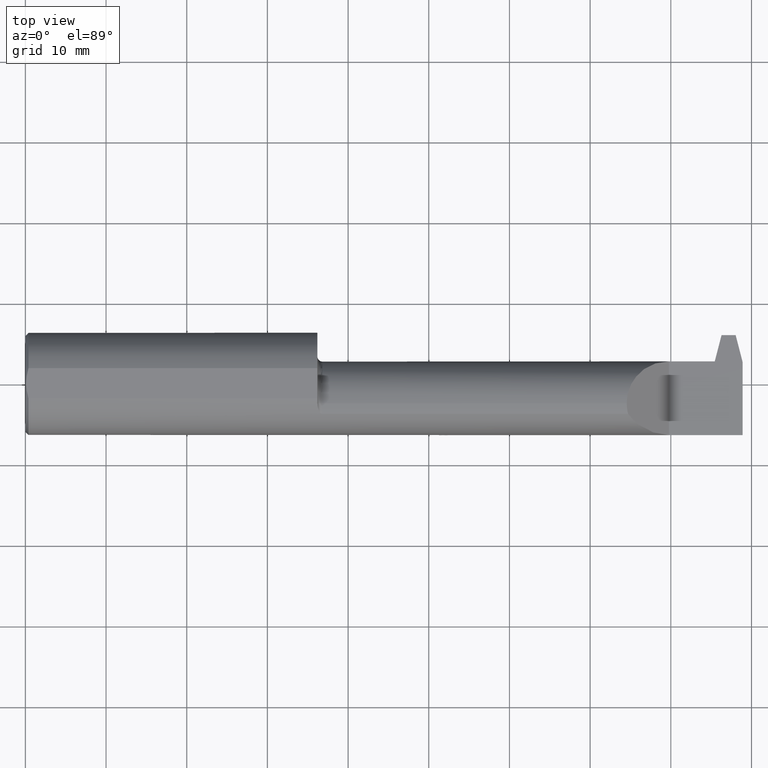
[diagram: clean part render]
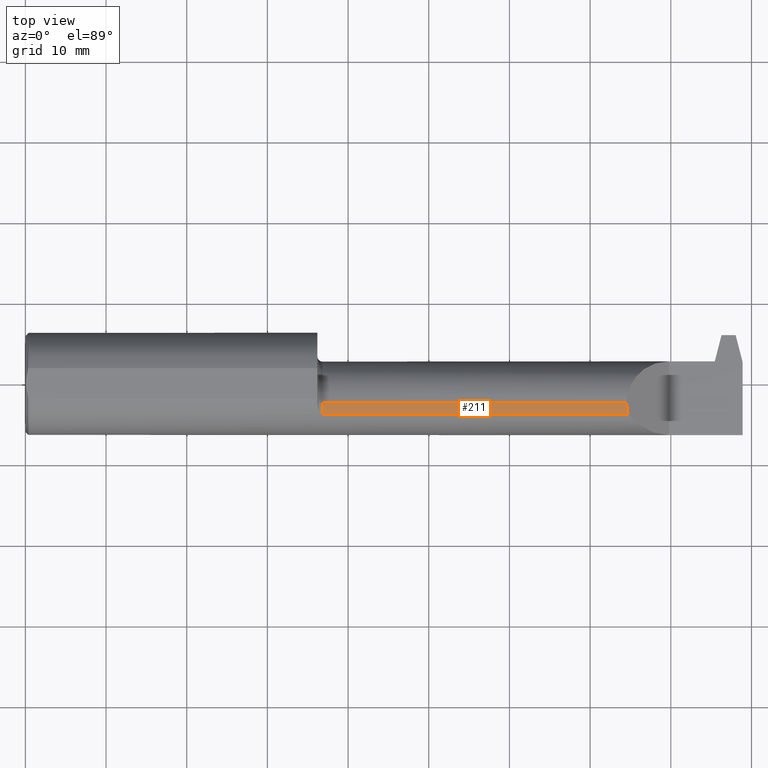
[diagram: same view with one face highlighted and labeled with its STEP entity id]
A machine part, top view. The second image highlights one B-rep face of the part: STEP entity #211.
In plain terms, the highlighted cylindrical surface (partial cylindrical patch) has radius 5.2578 mm, axis along (-1, -0, -0).
Its self-contained STEP definition (entity closure, byte-faithful):
#11 = VECTOR ( 'NONE', #416, 39.37007874015748143 ) ;
#119 = DIRECTION ( 'NONE',  ( 0.000000000000000000, 0.000000000000000000, -1.000000000000000000 ) ) ;
#123 = LINE ( 'NONE', #694, #333 ) ;
#133 = CARTESIAN_POINT ( 'NONE',  ( 1.424999999999999600, -0.09685000000000000553, 0.2070000000000000173 ) ) ;
#145 = CARTESIAN_POINT ( 'NONE',  ( 1.449999999999999512, -0.1494886164171398968, 0.2001953447552894949 ) ) ;
#146 = EDGE_LOOP ( 'NONE', ( #389, #663, #222, #729 ) ) ;
#211 = ADVANCED_FACE ( 'NONE', ( #635 ), #923, .T. ) ;
#213 =( BOUNDED_CURVE ( )  B_SPLINE_CURVE ( 3, ( #251, #397, #386, #885 ),
 .UNSPECIFIED., .F., .F. ) 
 B_SPLINE_CURVE_WITH_KNOTS ( ( 4, 4 ),
 ( 0.000000000000000000, 0.2571164291075364039 ),
 .UNSPECIFIED. ) 
 CURVE ( )  GEOMETRIC_REPRESENTATION_ITEM ( )  RATIONAL_B_SPLINE_CURVE ( ( 1.000000000000000000, 0.9944985117787173978, 0.9944985117787173978, 1.000000000000000000 ) ) 
 REPRESENTATION_ITEM ( '' )  );
#222 = ORIENTED_EDGE ( 'NONE', *, *, #284, .T. ) ;
#246 = AXIS2_PLACEMENT_3D ( 'NONE', #265, #349, #274 ) ;
#251 = CARTESIAN_POINT ( 'NONE',  ( 2.934349999999999348, -0.09685000000000000553, 0.2070000000000000173 ) ) ;
#265 = CARTESIAN_POINT ( 'NONE',  ( 1.424999999999999600, -0.09685000000000000553, 0.000000000000000000 ) ) ;
#274 = DIRECTION ( 'NONE',  ( 0.000000000000000000, 0.000000000000000000, 1.000000000000000000 ) ) ;
#284 = EDGE_CURVE ( 'NONE', #436, #834, #343, .T. ) ;
#303 = VERTEX_POINT ( 'NONE', #697 ) ;
#333 = VECTOR ( 'NONE', #705, 39.37007874015748143 ) ;
#343 = CIRCLE ( 'NONE', #660, 0.2070000000000000173 ) ;
#349 = DIRECTION ( 'NONE',  ( -1.000000000000000000, -0.000000000000000000, -0.000000000000000000 ) ) ;
#357 = VERTEX_POINT ( 'NONE', #432 ) ;
#386 = CARTESIAN_POINT ( 'NONE',  ( 2.936630766022310546, -0.1322833472790595488, 0.2047192339776893188 ) ) ;
#389 = ORIENTED_EDGE ( 'NONE', *, *, #518, .F. ) ;
#397 = CARTESIAN_POINT ( 'NONE',  ( 2.934349999999999348, -0.1146400775661692711, 0.2070000000000000451 ) ) ;
#416 = DIRECTION ( 'NONE',  ( -1.000000000000000000, -0.000000000000000000, -0.000000000000000000 ) ) ;
#432 = CARTESIAN_POINT ( 'NONE',  ( 2.941154655244710092, -0.1494886164171397303, 0.2001953447552895782 ) ) ;
#436 = VERTEX_POINT ( 'NONE', #722 ) ;
#518 = EDGE_CURVE ( 'NONE', #303, #357, #213, .T. ) ;
#622 = DIRECTION ( 'NONE',  ( 1.000000000000000000, 0.000000000000000000, 0.000000000000000000 ) ) ;
#627 = CARTESIAN_POINT ( 'NONE',  ( 1.449999999999999512, -0.09685000000000000553, 0.000000000000000000 ) ) ;
#635 = FACE_OUTER_BOUND ( 'NONE', #146, .T. ) ;
#660 = AXIS2_PLACEMENT_3D ( 'NONE', #627, #622, #119 ) ;
#661 = EDGE_CURVE ( 'NONE', #834, #357, #123, .T. ) ;
#663 = ORIENTED_EDGE ( 'NONE', *, *, #872, .T. ) ;
#694 = CARTESIAN_POINT ( 'NONE',  ( 2.392499999999999627, -0.1494886164171398968, 0.2001953447552894949 ) ) ;
#697 = CARTESIAN_POINT ( 'NONE',  ( 2.934349999999999348, -0.09685000000000000553, 0.2070000000000000173 ) ) ;
#705 = DIRECTION ( 'NONE',  ( 1.000000000000000000, 0.000000000000000000, 0.000000000000000000 ) ) ;
#722 = CARTESIAN_POINT ( 'NONE',  ( 1.449999999999999512, -0.09685000000000000553, 0.2070000000000000173 ) ) ;
#729 = ORIENTED_EDGE ( 'NONE', *, *, #661, .T. ) ;
#782 = LINE ( 'NONE', #133, #11 ) ;
#834 = VERTEX_POINT ( 'NONE', #145 ) ;
#872 = EDGE_CURVE ( 'NONE', #303, #436, #782, .T. ) ;
#885 = CARTESIAN_POINT ( 'NONE',  ( 2.941154655244710092, -0.1494886164171397303, 0.2001953447552895782 ) ) ;
#923 = CYLINDRICAL_SURFACE ( 'NONE', #246, 0.2070000000000000173 ) ;